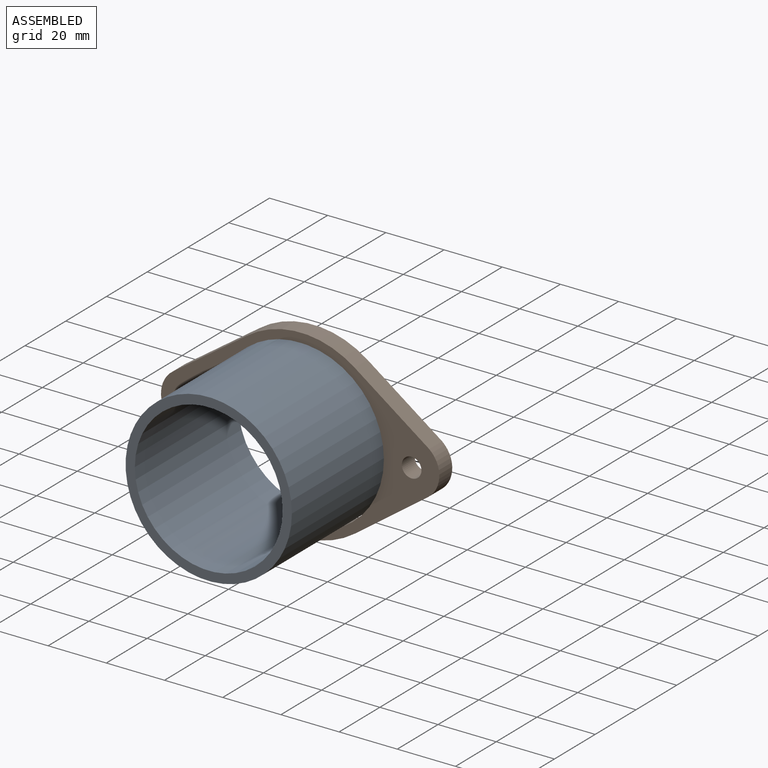
[diagram: assembled view]
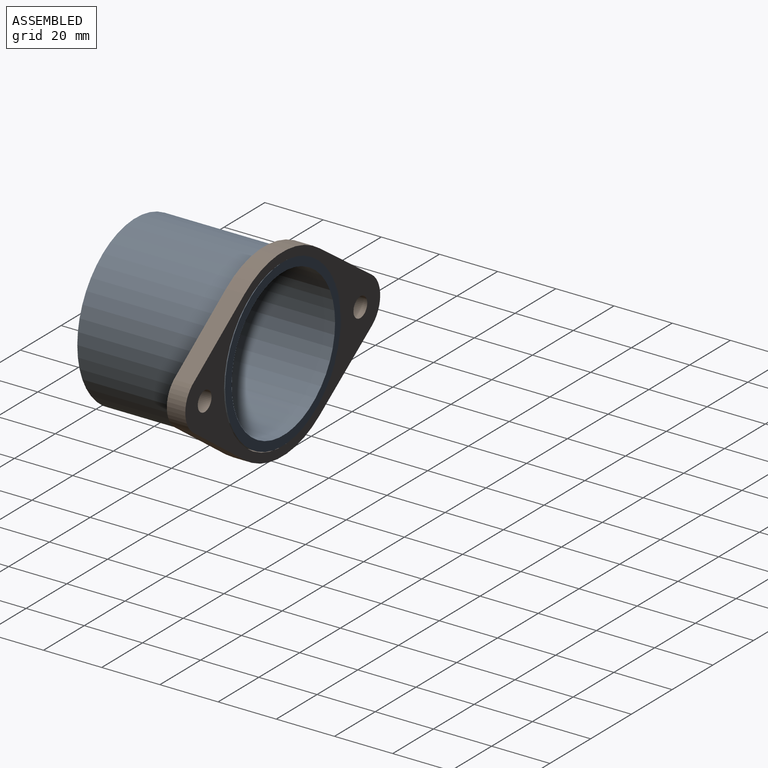
[diagram: assembled view, second angle]
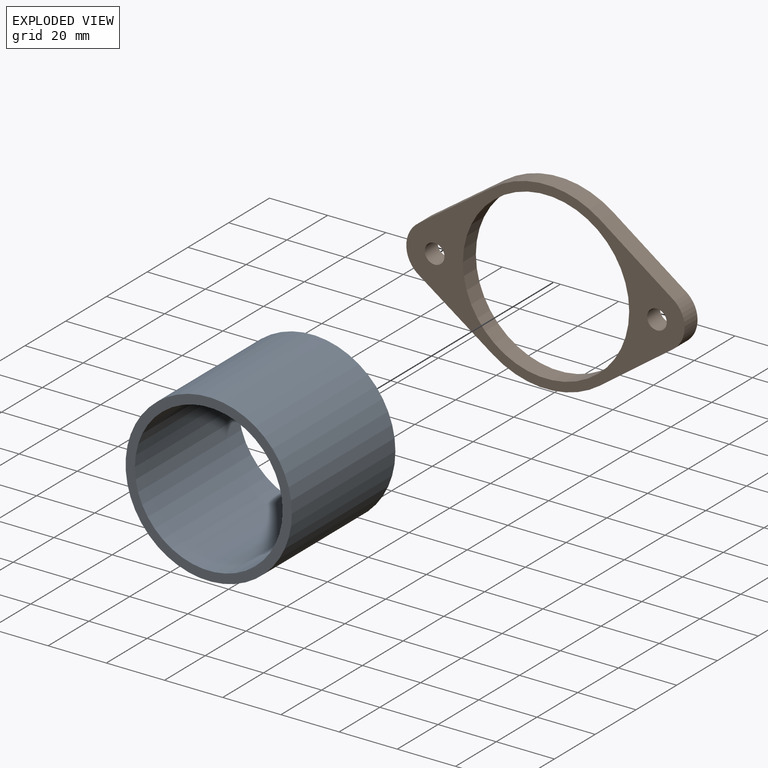
[diagram: exploded view]
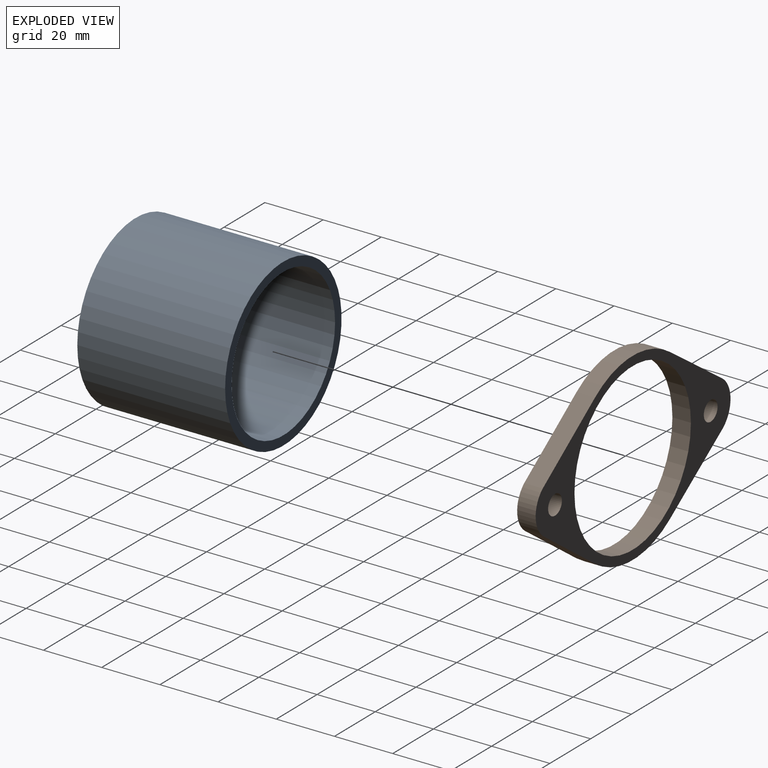
[diagram: exploded view, second angle]
ASSEMBLY  parts=2 mates=2
PART A: 4 faces, bbox 57.2x50.8x57.2 mm
  f0: cylinder r=25.4mm len=50.8mm, axis (0,1,0), area 8107.3mm2, adj f2,f3
  f1: cylinder r=28.57mm len=57.15mm, axis (0,1,0), area 9120.7mm2, adj f2,f3
  f2: plane 57.15x57.15mm, normal (0,-1,0), area 538.4mm2, adj f0,f1
  f3: plane 57.15x57.15mm, normal (0,1,0), area 538.4mm2, adj f0,f1
PART B: 13 faces, bbox 95.7x6.4x63.5 mm
  f0: plane 26.02x18.3mm, normal (-0.58,0,-0.82), area 202mm2, adj f1,f10,f11,f12
  f1: cylinder r=31.75mm len=36.82mm, axis (0,-1,0), area 249.4mm2, adj f0,f2,f11,f12
  f2: plane 25.1x18.03mm, normal (0.58,0,-0.81), area 196.3mm2, adj f1,f3,f11,f12
  f3: cylinder r=9.53mm len=15.1mm, axis (0,-1,0), area 110.7mm2, adj f2,f4,f11,f12
  f4: plane 25.61x18.42mm, normal (0.58,0,0.81), area 200.3mm2, adj f3,f5,f11,f12
  f5: cylinder r=31.75mm len=37.11mm, axis (0,-1,0), area 251.7mm2, adj f4,f6,f11,f12
  f6: plane 25.32x17.79mm, normal (-0.57,0,0.82), area 196.5mm2, adj f5,f10,f11,f12
  f7: cylinder r=28.57mm len=57.15mm, axis (0,-1,0), area 1140.1mm2, adj f11,f12
  f8: cylinder r=3.38mm len=6.76mm, axis (0,-1,0), area 134.8mm2, adj f11,f12
  f9: cylinder r=3.38mm len=6.76mm, axis (0,-1,0), area 134.8mm2, adj f11,f12
  f10: cylinder r=9.73mm len=15.63mm, axis (0,-1,0), area 115.3mm2, adj f0,f6,f11,f12
  f11: plane 95.66x63.5mm, normal (0,1,0), area 1361.8mm2, adj f0,f1,f2,f3,f4,f5,f6,f7
  f12: plane 95.66x63.5mm, normal (0,-1,0), area 1361.8mm2, adj f0,f1,f2,f3,f4,f5,f6,f7
PLACE A t=(-1.56,3.31,1.3)mm
PLACE B t=(-1.07,-3.04,1.3)mm
MATE planar A.f0 <-> B.f1  axis (0,1,0) through (-1.56,3.31,1.3)mm
MATE cylindrical A.f0 <-> B.f12  axis (0,1,0) through (-1.56,-22.09,1.3)mm
